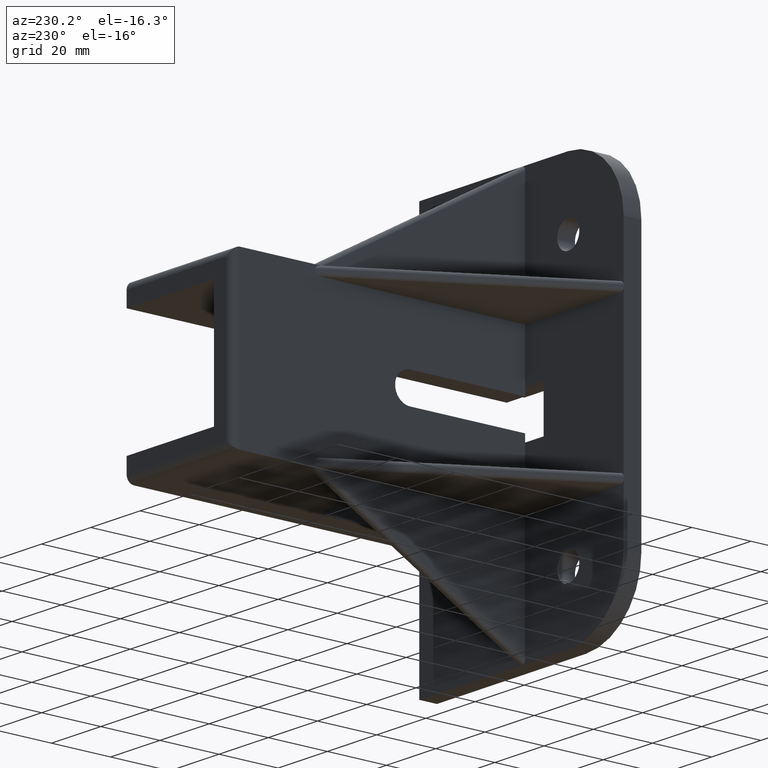
[diagram: clean part render]
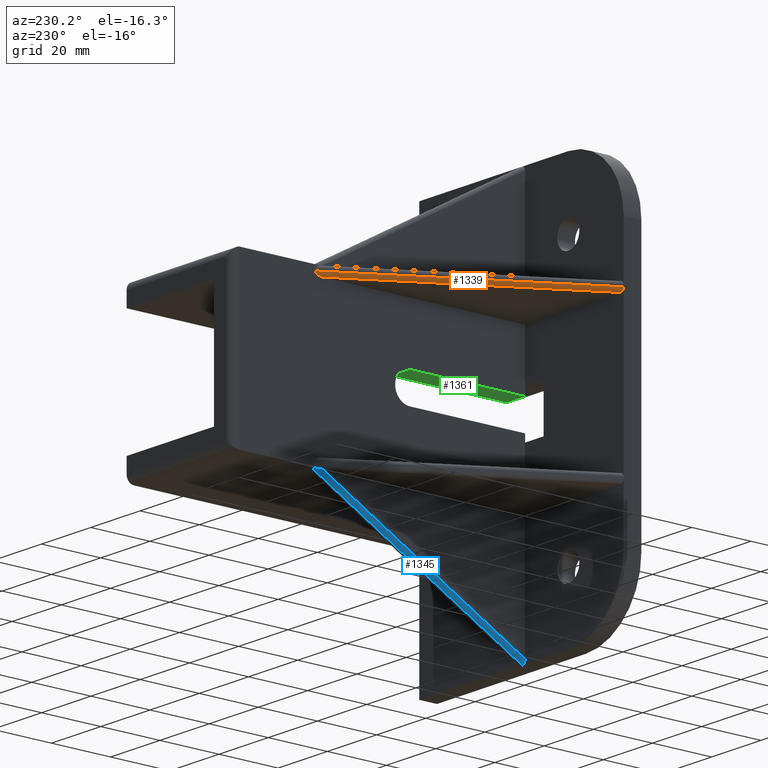
[diagram: same view with three faces highlighted in distinct colors, each labeled with its STEP entity id]
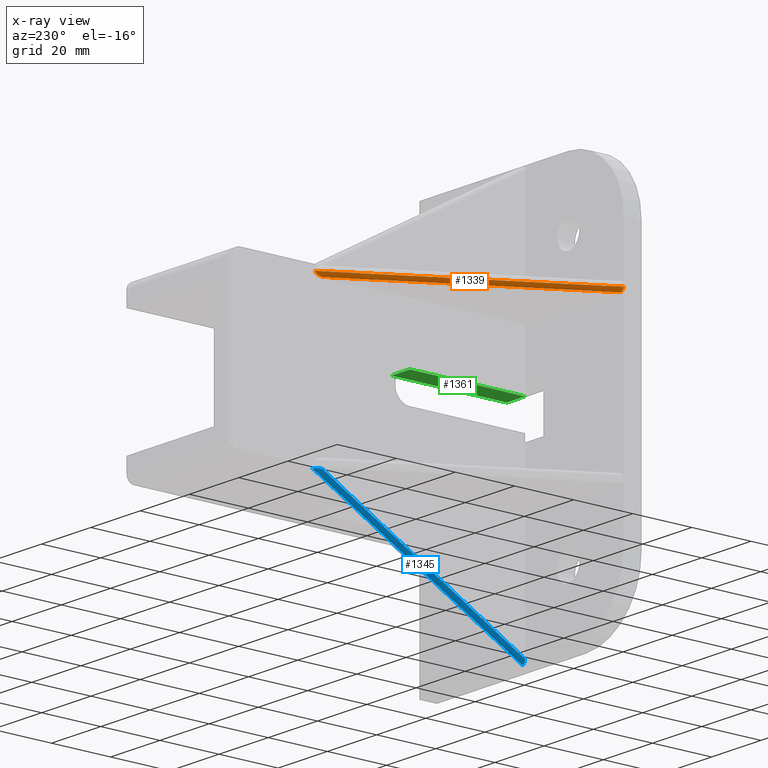
[diagram: x-ray of the same camera — body ghosted, the three highlighted faces saturated]
A machine part, auxiliary view with three faces highlighted in distinct colors.
The next image is the same camera in x-ray (body ghosted, the three faces saturated) — at least one of them is partly hidden behind the body in this view.
Their STEP definitions:

[orange] entity #1339 — the highlighted cylindrical surface (edge-blend (fillet) strip) has radius 1.2 mm, axis along (0.4908, 0.8712, 0).
#19=ELLIPSE('',#1386,1.37733517060579,1.19999999999988);
#20=ELLIPSE('',#1389,2.44476992782592,1.20000000000023);
#169=LINE('',#2161,#330);
#170=LINE('',#2163,#331);
#330=VECTOR('',#1727,81.4923309275173);
#331=VECTOR('',#1730,78.6862745894891);
#452=FACE_OUTER_BOUND('',#527,.T.);
#527=EDGE_LOOP('',(#1144,#1145,#1146,#1147));
#616=VERTEX_POINT('',#1934);
#617=VERTEX_POINT('',#1936);
#622=VERTEX_POINT('',#1948);
#623=VERTEX_POINT('',#1950);
#742=EDGE_CURVE('',#616,#617,#19,.T.);
#749=EDGE_CURVE('',#622,#623,#20,.T.);
#862=EDGE_CURVE('',#623,#616,#169,.T.);
#863=EDGE_CURVE('',#617,#622,#170,.T.);
#1144=ORIENTED_EDGE('',*,*,#749,.F.);
#1145=ORIENTED_EDGE('',*,*,#863,.F.);
#1146=ORIENTED_EDGE('',*,*,#742,.F.);
#1147=ORIENTED_EDGE('',*,*,#862,.F.);
#1289=CYLINDRICAL_SURFACE('',#1440,1.2);
#1339=ADVANCED_FACE('',(#452),#1289,.T.);
#1386=AXIS2_PLACEMENT_3D('',#1937,#1539,#1540);
#1389=AXIS2_PLACEMENT_3D('',#1951,#1550,#1551);
#1440=AXIS2_PLACEMENT_3D('',#2182,#1757,#1758);
#1539=DIRECTION('center_axis',(-7.78406168813617E-15,-1.,-8.93438494436326E-15));
#1540=DIRECTION('ref_axis',(1.,-7.78406168813299E-15,-3.56058135366083E-13));
#1550=DIRECTION('center_axis',(1.,0.,0.));
#1551=DIRECTION('ref_axis',(0.,1.,-1.15207869395291E-13));
#1727=DIRECTION('',(-0.490843733940776,-0.871247627744877,0.));
#1730=DIRECTION('',(0.490843733940776,0.871247627744877,0.));
#1757=DIRECTION('center_axis',(0.490843733940776,0.871247627744877,0.));
#1758=DIRECTION('ref_axis',(-0.871247627744877,0.490843733940776,0.));
#1934=CARTESIAN_POINT('',(-67.5,6.,25.7));
#1936=CARTESIAN_POINT('',(-66.1226648293941,6.,24.5));
#1937=CARTESIAN_POINT('Origin',(-66.1226648293942,5.99999999999999,25.6999999999999));
#1948=CARTESIAN_POINT('',(-27.5,74.5552300721745,24.5));
#1950=CARTESIAN_POINT('',(-27.5,77.,25.7));
#1951=CARTESIAN_POINT('Origin',(-27.5,74.555230072174,25.7000000000002));
#2161=CARTESIAN_POINT('',(-67.5,6.00000000000002,25.7));
#2163=CARTESIAN_POINT('',(-26.4545028467062,76.410987519271,24.5));
#2182=CARTESIAN_POINT('Origin',(-26.4545028467061,76.4109875192711,25.7));

[blue] entity #1345 — the highlighted cylindrical surface (edge-blend (fillet) strip) has radius 1.2 mm, axis along (0, -0.8712, -0.4908).
#26=ELLIPSE('',#1402,2.44476992782507,1.19999999999972);
#32=ELLIPSE('',#1421,1.37733517060462,1.19999999999882);
#127=LINE('',#2067,#288);
#178=LINE('',#2177,#339);
#288=VECTOR('',#1639,78.6862745894892);
#339=VECTOR('',#1750,81.4923309275173);
#458=FACE_OUTER_BOUND('',#533,.T.);
#533=EDGE_LOOP('',(#1168,#1169,#1170,#1171));
#628=VERTEX_POINT('',#1960);
#656=VERTEX_POINT('',#2031);
#669=VERTEX_POINT('',#2066);
#691=VERTEX_POINT('',#2125);
#793=EDGE_CURVE('',#656,#628,#26,.T.);
#810=EDGE_CURVE('',#628,#669,#127,.T.);
#841=EDGE_CURVE('',#669,#691,#32,.T.);
#871=EDGE_CURVE('',#691,#656,#178,.T.);
#1168=ORIENTED_EDGE('',*,*,#793,.F.);
#1169=ORIENTED_EDGE('',*,*,#871,.F.);
#1170=ORIENTED_EDGE('',*,*,#841,.F.);
#1171=ORIENTED_EDGE('',*,*,#810,.F.);
#1295=CYLINDRICAL_SURFACE('',#1446,1.2);
#1345=ADVANCED_FACE('',(#458),#1295,.T.);
#1402=AXIS2_PLACEMENT_3D('',#2033,#1612,#1613);
#1421=AXIS2_PLACEMENT_3D('',#2126,#1689,#1690);
#1446=AXIS2_PLACEMENT_3D('',#2188,#1769,#1770);
#1612=DIRECTION('center_axis',(0.,0.,1.));
#1613=DIRECTION('ref_axis',(-1.03406087652326E-13,-1.,0.));
#1639=DIRECTION('',(0.,-0.871247627744877,-0.490843733940776));
#1689=DIRECTION('center_axis',(-8.9343849443631E-15,-1.,-7.78406168813607E-15));
#1690=DIRECTION('ref_axis',(2.86942008364729E-12,7.78406168811043E-15,-1.));
#1750=DIRECTION('',(0.,0.871247627744877,0.490843733940776));
#1769=DIRECTION('center_axis',(0.,-0.871247627744878,-0.490843733940776));
#1770=DIRECTION('ref_axis',(0.,0.490843733940776,-0.871247627744877));
#1960=CARTESIAN_POINT('',(-27.5,74.5552300721745,-27.5));
#2031=CARTESIAN_POINT('',(-26.3,77.,-27.5));
#2033=CARTESIAN_POINT('Origin',(-26.3000000000003,74.5552300721749,-27.5));
#2066=CARTESIAN_POINT('',(-27.5,6.,-66.1226648293941));
#2067=CARTESIAN_POINT('',(-27.5,69.5739900791265,-30.3063323904496));
#2125=CARTESIAN_POINT('',(-26.3,6.,-67.5));
#2126=CARTESIAN_POINT('Origin',(-26.3000000000012,5.99999999999999,-66.1226648293954));
#2177=CARTESIAN_POINT('',(-26.3,77.,-27.5));
#2188=CARTESIAN_POINT('Origin',(-26.3,69.5739900791265,-30.3063323904496));

[green] entity #1361 — the highlighted planar face has unit normal (0, 0, -1).
#63=LINE('',#1916,#224);
#73=LINE('',#1946,#234);
#189=LINE('',#2217,#350);
#190=LINE('',#2218,#351);
#224=VECTOR('',#1525,39.);
#234=VECTOR('',#1547,39.);
#350=VECTOR('',#1819,7.50000000000001);
#351=VECTOR('',#1820,7.50000000000002);
#400=PLANE('',#1466);
#474=FACE_OUTER_BOUND('',#549,.T.);
#549=EDGE_LOOP('',(#1236,#1237,#1238,#1239));
#606=VERTEX_POINT('',#1913);
#607=VERTEX_POINT('',#1915);
#620=VERTEX_POINT('',#1943);
#621=VERTEX_POINT('',#1945);
#732=EDGE_CURVE('',#606,#607,#63,.T.);
#746=EDGE_CURVE('',#620,#621,#73,.T.);
#886=EDGE_CURVE('',#621,#606,#189,.T.);
#887=EDGE_CURVE('',#607,#620,#190,.T.);
#1236=ORIENTED_EDGE('',*,*,#886,.F.);
#1237=ORIENTED_EDGE('',*,*,#746,.F.);
#1238=ORIENTED_EDGE('',*,*,#887,.F.);
#1239=ORIENTED_EDGE('',*,*,#732,.F.);
#1361=ADVANCED_FACE('',(#474),#400,.T.);
#1466=AXIS2_PLACEMENT_3D('',#2216,#1817,#1818);
#1525=DIRECTION('',(6.68725675134457E-33,1.,7.70988211545248E-17));
#1547=DIRECTION('',(0.,-1.,-7.70988211545248E-17));
#1817=DIRECTION('center_axis',(0.,7.70988211545248E-17,-1.));
#1818=DIRECTION('ref_axis',(0.,1.,0.));
#1819=DIRECTION('',(1.,0.,0.));
#1820=DIRECTION('',(-1.,0.,0.));
#1913=CARTESIAN_POINT('',(-20.,6.,5.));
#1915=CARTESIAN_POINT('',(-20.,45.,5.));
#1916=CARTESIAN_POINT('',(-20.,6.,5.));
#1943=CARTESIAN_POINT('',(-27.5,45.,5.));
#1945=CARTESIAN_POINT('',(-27.5,6.,5.));
#1946=CARTESIAN_POINT('',(-27.5,0.,5.));
#2216=CARTESIAN_POINT('Origin',(70.9901951359278,0.,5.));
#2217=CARTESIAN_POINT('',(70.9901951359278,6.,5.));
#2218=CARTESIAN_POINT('',(70.9901951359278,45.,5.));